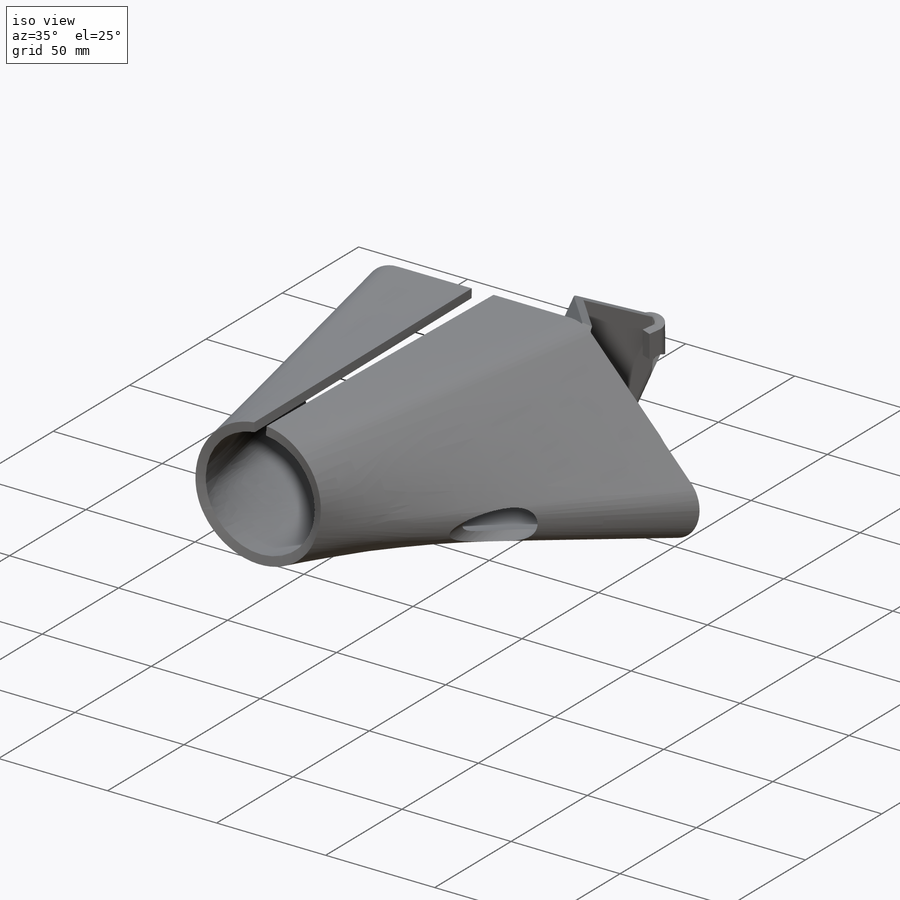
[diagram: iso view]
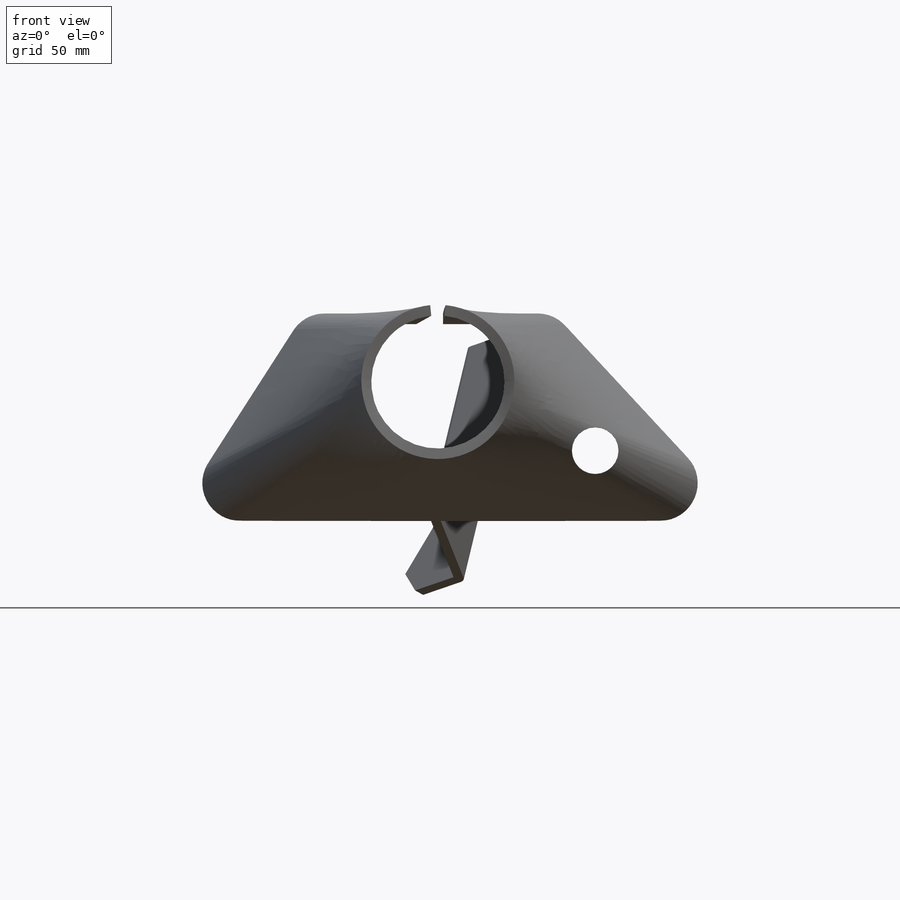
[diagram: front view]
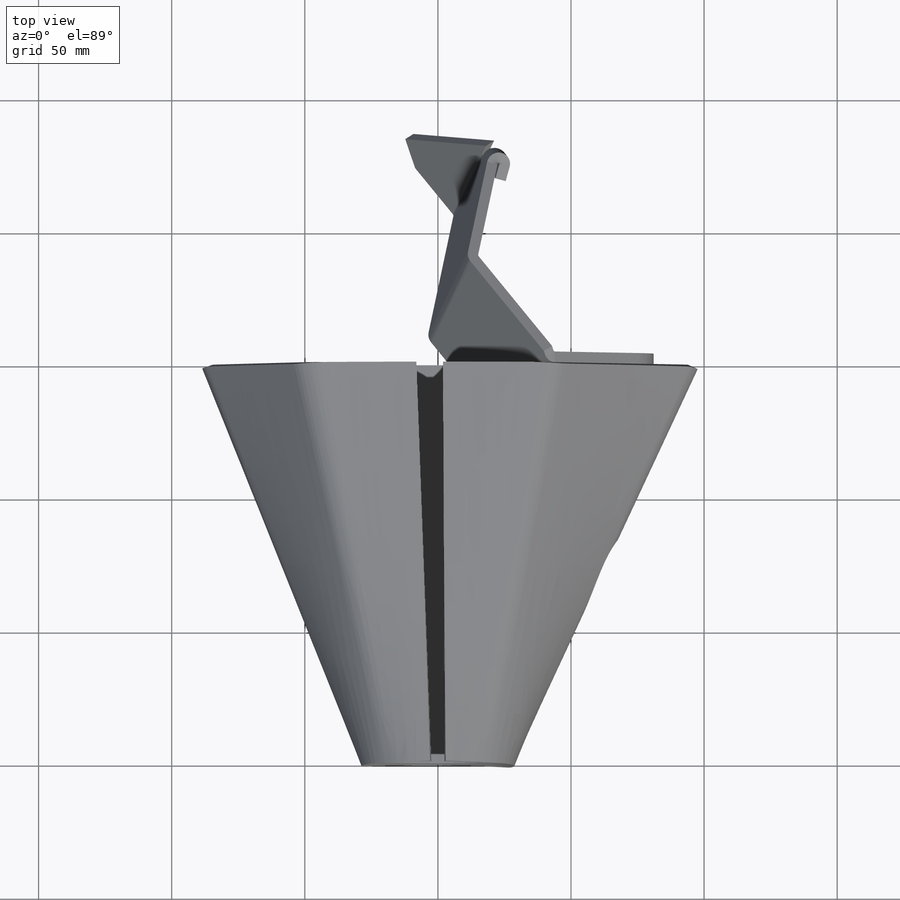
[diagram: top view]
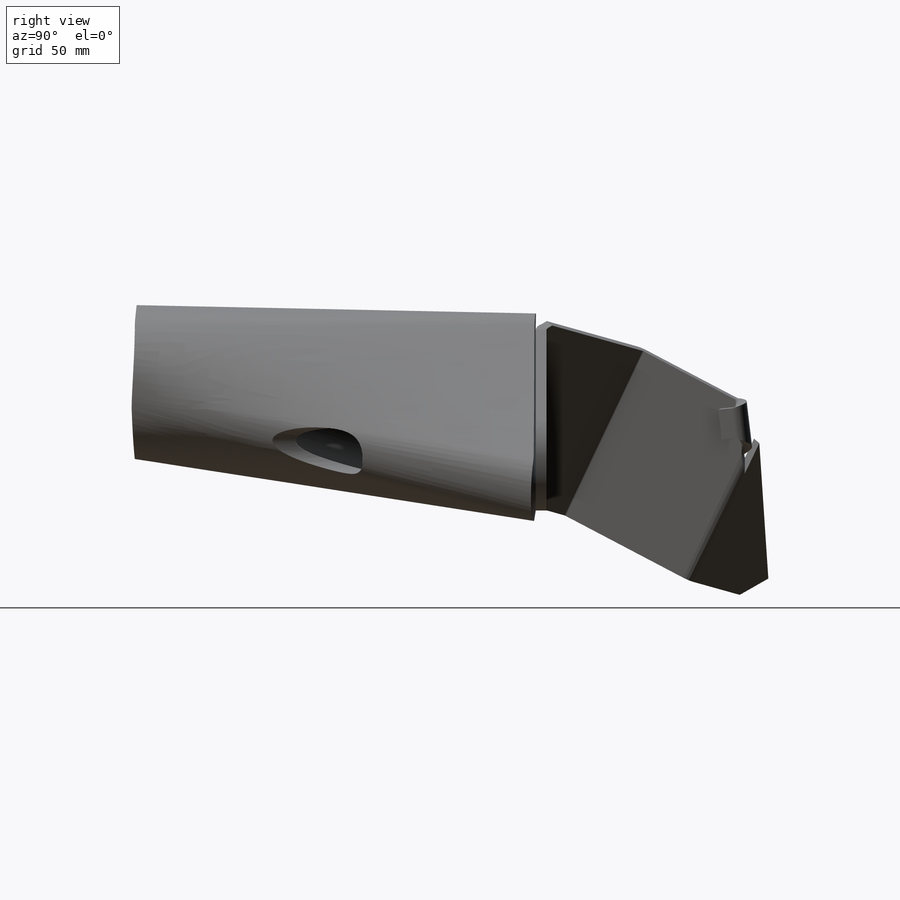
[diagram: right view]
SOLIDWORKS PART (.sldprt)
format: sldprt  version: not decoded by parser v0  size: 947,712 bytes
history: native  units: mm
features: sketch x22, chamfer x8, plane x4, fillet x4, sheet_metal_op x3, hole x2, material x1 + 6 further entries (+9 scaffold rows collapsed)
feature tree (59):
  scaffold x9  (default folders/planes/origin — collapsed)
  material  "1.0037 (S235JR)"
  "Element listy elementów ciętych2"
  plane  "Płaszczyzna przednia"
  plane  "Płaszczyzna górna"
  plane  "Płaszczyzna prawa"
  sketch  "Szkic1"  dims[c1.D1=~99.364024mm c1.D2=~190.991374mm c2.D1=90.0mm c2.D2=30.0mm c2.D3=190.0mm c2.D4=100.0mm c3.D2=70.0mm c3.D3=200.0mm c3.D4=45.0mm c3.D1=1.0mm c4.D2=0.0 c4.D3=0.0mm]
  sheet_metal_op  "Odgięcie bazowe1"
  plane  "Płaszczyzna1"  Offset=150mm
  sketch  "Szkic6"  dims[D1=50.0mm D2=5.0mm]
  sketch  "Szkic7"  dims[c1.D2=10.0mm c1.D3=10.0mm c1.D1=0.0mm c2.D1=1000.0mm c2.D4=~57.29578deg c2.D5=1.0 c2.D8=0.0mm c2.D9=0.0mm c3.D1=0.0mm]
  sketch  "Szkic12"  dims[D1=~1.429893mm]
  "Transformacja szkicu3"
  "Zgięcie uskoku2"
  sketch  "Szkic16"
  "Zgięcie podwinięcia2"
  sketch  "Szkic17"  dims[D1=80.0mm]
  "Szkic dla zgięcia1"
  sketch  "Szkic18"
  hole  "Otwór pod śrubę M161"  [1 undecoded]
  sketch  "Szkic 3D1"
  sketch  "Szkic19"  dims[hole-wizard template sketch: 59 standard entries collapsed; hole parameters kept: c18.Średnica otworu na wylot=17.5mm c18.Głębokość otworu na wylot=~155.835472mm]
  fillet  "Zaokrąglenie1"  Radius=20mm
  chamfer  "Sfazowanie1"  Distance=15mm Angle=45deg
  hole  "Szkic 3D4"  Diameter=34.595474mm
  sketch  "Linie zgięcia1"
  sketch  "Ramka-graniczna1"
  sheet_metal_op  "Arkusz blachy(7)"
  "Rozłożony model(7)"
  sketch  "Linie zgięcia2"
  sketch  "Ramka-graniczna2"
  chamfer  "Rozłożone-<Zgięcie uskoku1>1"  [1 undecoded]
  chamfer  "Rozłożone-<Zgięcie uskoku2>1"  [1 undecoded]
  chamfer  "Rozłożone-<Zgięcie podwinięcia2>1"  [1 undecoded]
  sketch  "Arkusz blachy(8)"  dims[D1=1.0mm D2=0.0mm D3=0.0mm D7=4.0mm]
  fillet  "Rozłożony model(8)"  [1 undecoded]
  sketch  "Linie zgięcia3"
  sketch  "Ramka-graniczna3"
  sketch  "Arkusz blachy(9)"  dims[D1=1.0mm D2=0.0mm D3=0.0mm D7=4.0mm]
  fillet  "Rozłożony model(7)"  [1 undecoded]
  sketch  "Linie zgięcia4"
  sketch  "Ramka-graniczna4"
  chamfer  "Rozłożone-<Szkic dla zgięcia1>2"  [1 undecoded]
  chamfer  "Rozłożone-<Zgięcie uskoku1>2"  [1 undecoded]
  chamfer  "Rozłożone-<Zgięcie uskoku2>2"  [1 undecoded]
  chamfer  "Rozłożone-<Zgięcie podwinięcia2>2"  [1 undecoded]
  sketch  "Arkusz blachy(10)"  dims[D1=1.0mm D2=0.0mm D3=0.0mm D7=4.0mm]
  fillet  "Rozłożony model(8)"  [1 undecoded]
  sketch  "Linie zgięcia5"
  sketch  "Ramka-graniczna5"
  sheet_metal_op  "Rozłożone-<Zgięcie swobodnego formowania1>2"
decode coverage: 12 of 39 modeling features carry decoded parameters; 6 rows unclassified (native names shown)
note: ~ marks probable driven/reference dimensions
note: 11 parameter values undecoded
summary: no parameter record found for 11 features
note: suppression state not decoded; provenance and decode notes live in map.json
